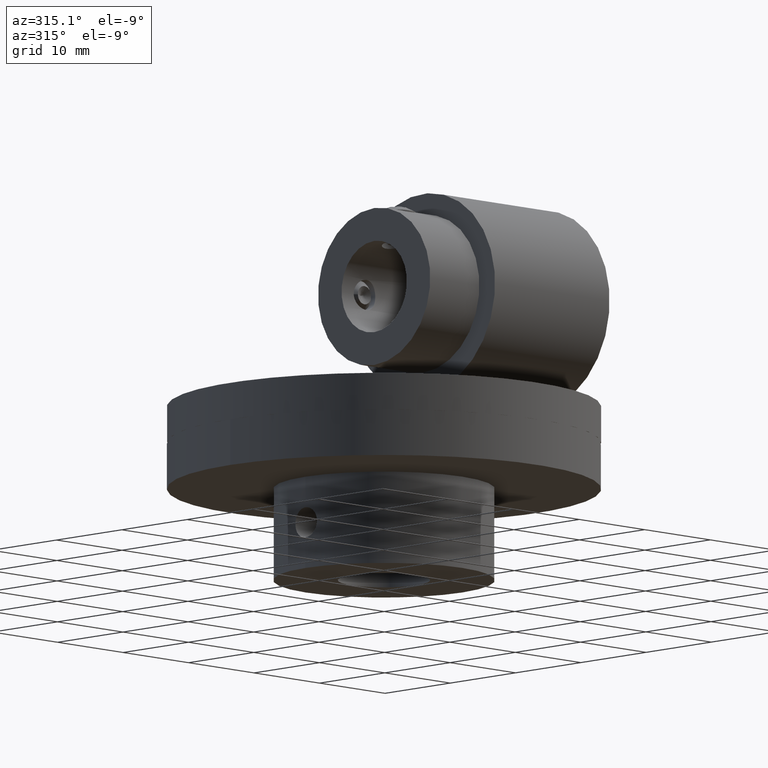
[diagram: clean part render]
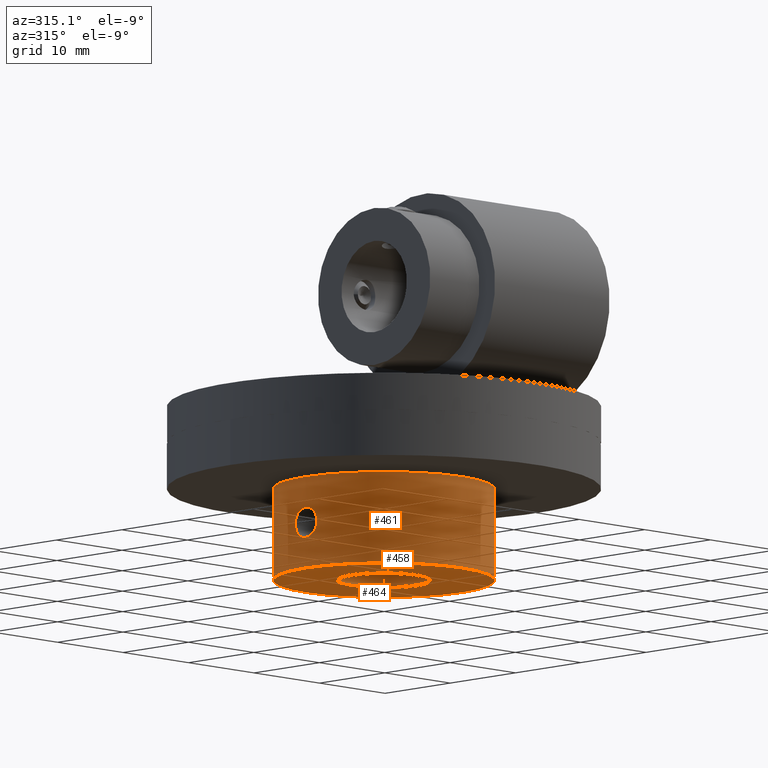
[diagram: same view with one multi-face feature highlighted, each face labeled with its STEP entity id]
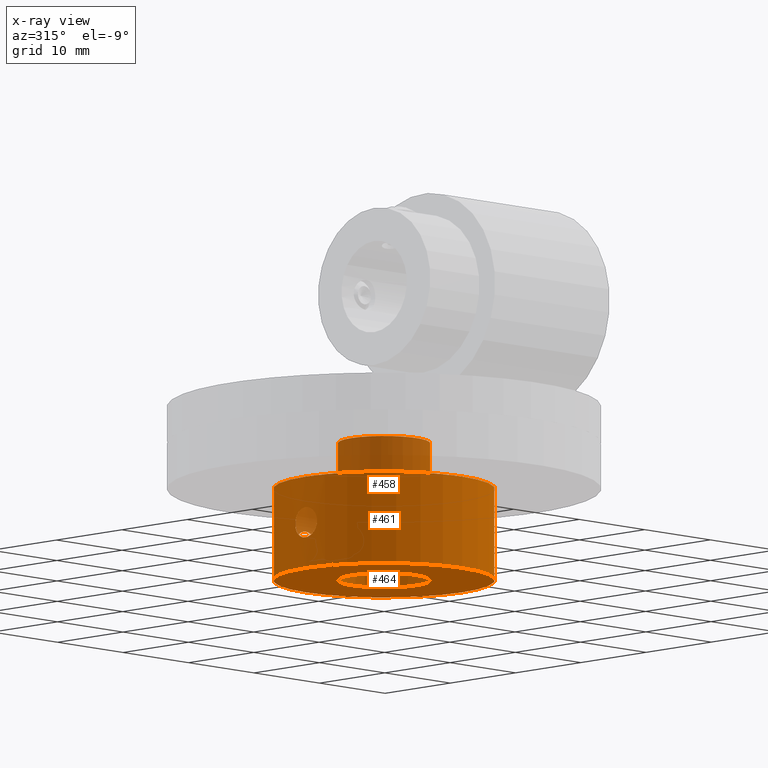
[diagram: x-ray of the same camera — body ghosted, the whole feature saturated]
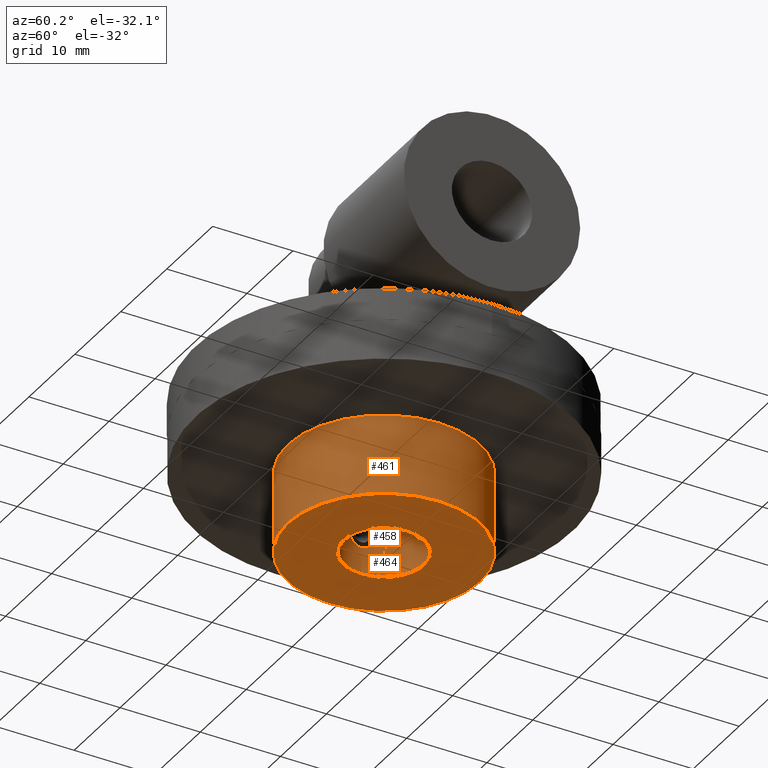
[diagram: same view with one multi-face feature highlighted, each face labeled with its STEP entity id]
A machine part, auxiliary view. The highlighted faces form ONE feature: a stepped (counterbored) hole: 2 coaxial cylindrical walls of radii 5 -> 12 mm joined by 1 annular planar shoulder face(s). The faces share edges in the B-rep.
The next image is the same camera in x-ray: the body ghosted and the whole hole feature saturated, so the bore chain is visible through the body.
A second angle (auxiliary view) of the same feature is appended — it is thin or edge-on in the first view.
Their STEP definitions:
[1] entity #461 (Cylinder):
#461 = ADVANCED_FACE( '', ( #560, #561, #562, #563 ), #564, .T. );
#560 = FACE_BOUND( '', #744, .T. );
#561 = FACE_BOUND( '', #745, .T. );
#562 = FACE_OUTER_BOUND( '', #746, .T. );
#563 = FACE_OUTER_BOUND( '', #747, .T. );
#564 = CYLINDRICAL_SURFACE( '', #748, 12.0000000000000 );
#744 = EDGE_LOOP( '', ( #944 ) );
#745 = EDGE_LOOP( '', ( #945 ) );
#746 = EDGE_LOOP( '', ( #946 ) );
#747 = EDGE_LOOP( '', ( #947 ) );
#748 = AXIS2_PLACEMENT_3D( '', #948, #949, #950 );
#944 = ORIENTED_EDGE( '', *, *, #1345, .T. );
#945 = ORIENTED_EDGE( '', *, *, #1344, .T. );
#946 = ORIENTED_EDGE( '', *, *, #1346, .F. );
#947 = ORIENTED_EDGE( '', *, *, #1347, .T. );
#948 = CARTESIAN_POINT( '', ( 0.000000000000000, 0.000000000000000, 18.0000000000000 ) );
#949 = DIRECTION( '', ( -0.000000000000000, -0.000000000000000, 1.00000000000000 ) );
#950 = DIRECTION( '', ( 1.00000000000000, -1.22460635382238E-016, 0.000000000000000 ) );
#1344 = EDGE_CURVE( '', #1470, #1470, #1471, .T. );
#1345 = EDGE_CURVE( '', #1472, #1472, #1473, .T. );
#1346 = EDGE_CURVE( '', #1474, #1474, #1475, .T. );
#1347 = EDGE_CURVE( '', #1476, #1476, #1477, .T. );
#1470 = VERTEX_POINT( '', #1780 );
#1471 = B_SPLINE_CURVE_WITH_KNOTS( '', 3, ( #1781, #1782, #1783, #1784, #1785, #1786, #1787, #1788, #1789, #1790, #1791, #1792, #1793, #1794, #1795, #1796, #1797, #1798, #1799, #1800, #1801, #1802, #1803, #1804, #1805, #1806, #1807, #1808, #1809, #1810, #1811, #1812, #1813, #1814, #1815, #1816, #1817, #1818, #1819, #1820, #1821, #1822, #1823, #1824, #1825, #1826, #1827, #1828, #1829, #1830, #1831, #1832, #1833, #1834 ), .UNSPECIFIED., .T., .F., ( 2, 2, 2, 2, 2, 2, 2, 2, 2, 2, 2, 2, 2, 2, 2, 2, 2, 2, 2, 2, 2, 2, 2, 2, 2, 2, 2, 2, 2 ), ( -0.000645517434393295, 0.000000000000000, 0.000322758717196647, 0.000645517434393294, 0.000968276151589940, 0.00129103486878659, 0.00193655230317988, 0.00258206973757318, 0.00290482845476983, 0.00322758717196648, 0.00355034588916313, 0.00387310460635977, 0.00419586332355642, 0.00451862204075307, 0.00484138075794972, 0.00516413947514637, 0.00580965690953966, 0.00645517434393295, 0.00677793306112960, 0.00710069177832625, 0.00742345049552289, 0.00774620921271954, 0.00806896792991619, 0.00839172664711284, 0.00871448536430948, 0.00903724408150613, 0.00968276151589943, 0.0103282789502927, 0.0106510376674894 ), .UNSPECIFIED. );
#1472 = VERTEX_POINT( '', #1835 );
#1473 = B_SPLINE_CURVE_WITH_KNOTS( '', 3, ( #1836, #1837, #1838, #1839, #1840, #1841, #1842, #1843, #1844, #1845, #1846, #1847, #1848, #1849, #1850, #1851, #1852, #1853, #1854, #1855, #1856, #1857, #1858, #1859, #1860, #1861, #1862, #1863, #1864, #1865, #1866, #1867, #1868, #1869, #1870, #1871, #1872, #1873, #1874, #1875, #1876, #1877, #1878, #1879, #1880, #1881, #1882, #1883, #1884, #1885, #1886, #1887, #1888, #1889 ), .UNSPECIFIED., .T., .F., ( 2, 2, 2, 2, 2, 2, 2, 2, 2, 2, 2, 2, 2, 2, 2, 2, 2, 2, 2, 2, 2, 2, 2, 2, 2, 2, 2, 2, 2 ), ( -0.000645517434393298, 0.000000000000000, 0.000322758717196646, 0.000645517434393292, 0.000968276151589938, 0.00129103486878658, 0.00193655230317988, 0.00258206973757318, 0.00290482845476982, 0.00322758717196647, 0.00355034588916312, 0.00387310460635977, 0.00419586332355642, 0.00451862204075307, 0.00484138075794971, 0.00516413947514636, 0.00580965690953966, 0.00645517434393295, 0.00677793306112959, 0.00710069177832624, 0.00742345049552289, 0.00774620921271954, 0.00806896792991619, 0.00839172664711284, 0.00871448536430948, 0.00903724408150613, 0.00968276151589943, 0.0103282789502927, 0.0106510376674894 ), .UNSPECIFIED. );
#1474 = VERTEX_POINT( '', #1890 );
#1475 = CIRCLE( '', #1891, 12.0000000000000 );
#1476 = VERTEX_POINT( '', #1892 );
#1477 = CIRCLE( '', #1893, 12.0000000000000 );
#1780 = CARTESIAN_POINT( '', ( -11.8860212013945, -1.65000000000000, 13.0000000000000 ) );
#1781 = CARTESIAN_POINT( '', ( -11.8860212013945, -1.65000000000000, 13.2182909455809 ) );
#1782 = CARTESIAN_POINT( '', ( -11.8860212013945, -1.65000000000000, 12.8908545272096 ) );
#1783 = CARTESIAN_POINT( '', ( -11.8875236816242, -1.63927717737327, 12.7835591133124 ) );
#1784 = CARTESIAN_POINT( '', ( -11.8932384658706, -1.59728761948740, 12.5725089681417 ) );
#1785 = CARTESIAN_POINT( '', ( -11.8975185933998, -1.56550183614249, 12.4676507707824 ) );
#1786 = CARTESIAN_POINT( '', ( -11.9081285026873, -1.48263961998445, 12.2678992842058 ) );
#1787 = CARTESIAN_POINT( '', ( -11.9144091334737, -1.43195195213871, 12.1731801874722 ) );
#1788 = CARTESIAN_POINT( '', ( -11.9281896898064, -1.31222030049528, 11.9939208388052 ) );
#1789 = CARTESIAN_POINT( '', ( -11.9357337081593, -1.24261593443063, 11.9091471662048 ) );
#1790 = CARTESIAN_POINT( '', ( -11.9580091924681, -1.01456897410241, 11.6811494175652 ) );
#1791 = CARTESIAN_POINT( '', ( -11.9728633980229, -0.830690564116475, 11.5582555575889 ) );
#1792 = CARTESIAN_POINT( '', ( -11.9938061539684, -0.433726529113416, 11.3935893587010 ) );
#1793 = CARTESIAN_POINT( '', ( -11.9999833618733, -0.216419265825407, 11.3501210045762 ) );
#1794 = CARTESIAN_POINT( '', ( -12.0000082656418, 0.106822846310654, 11.3499398862325 ) );
#1795 = CARTESIAN_POINT( '', ( -11.9985179870332, 0.216286157114143, 11.3606800619988 ) );
#1796 = CARTESIAN_POINT( '', ( -11.9928324869344, 0.427998279494535, 11.4028252964571 ) );
#1797 = CARTESIAN_POINT( '', ( -11.9886676032476, 0.530913579028390, 11.4340069832954 ) );
#1798 = CARTESIAN_POINT( '', ( -11.9781424301024, 0.730837912081705, 11.5167335697763 ) );
#1799 = CARTESIAN_POINT( '', ( -11.9717848973136, 0.827279767709785, 11.5683408333837 ) );
#1800 = CARTESIAN_POINT( '', ( -11.9580992786540, 1.00592598309263, 11.6876918426080 ) );
#1801 = CARTESIAN_POINT( '', ( -11.9507021265505, 1.08935615744355, 11.7559589799248 ) );
#1802 = CARTESIAN_POINT( '', ( -11.9356725814401, 1.24326110851905, 11.9097538289753 ) );
#1803 = CARTESIAN_POINT( '', ( -11.9282748630874, 1.31144047667497, 11.9929435225917 ) );
#1804 = CARTESIAN_POINT( '', ( -11.9145299846431, 1.43094115122344, 12.1714794545174 ) );
#1805 = CARTESIAN_POINT( '', ( -11.9081234720980, 1.48267952802686, 12.2679854761409 ) );
#1806 = CARTESIAN_POINT( '', ( -11.8975178764097, 1.56550681572276, 12.4676727924517 ) );
#1807 = CARTESIAN_POINT( '', ( -11.8933075619547, 1.59677542217257, 12.5705147228215 ) );
#1808 = CARTESIAN_POINT( '', ( -11.8875460157884, 1.63911751702412, 12.7821855892000 ) );
#1809 = CARTESIAN_POINT( '', ( -11.8860269015807, 1.64995893785510, 12.8916315590287 ) );
#1810 = CARTESIAN_POINT( '', ( -11.8860098506375, 1.65008176687772, 13.2148558238530 ) );
#1811 = CARTESIAN_POINT( '', ( -11.8922225254115, 1.60683191584746, 13.4322044681980 ) );
#1812 = CARTESIAN_POINT( '', ( -11.9132773000074, 1.44245948741022, 13.8294697916721 ) );
#1813 = CARTESIAN_POINT( '', ( -11.9281794237450, 1.31979043731900, 14.0133715847313 ) );
#1814 = CARTESIAN_POINT( '', ( -11.9504675503230, 1.09185764619256, 14.2417383268007 ) );
#1815 = CARTESIAN_POINT( '', ( -11.9580025627957, 1.00709130005012, 14.3114362135105 ) );
#1816 = CARTESIAN_POINT( '', ( -11.9717307859309, 0.828082222765253, 14.4312154488698 ) );
#1817 = CARTESIAN_POINT( '', ( -11.9779835823410, 0.733427551829478, 14.4819879601238 ) );
#1818 = CARTESIAN_POINT( '', ( -11.9885459995397, 0.533639850022685, 14.5650663877939 ) );
#1819 = CARTESIAN_POINT( '', ( -11.9927968445356, 0.428902281040798, 14.5969071991610 ) );
#1820 = CARTESIAN_POINT( '', ( -11.9984845372236, 0.217949835949641, 14.6390752387928 ) );
#1821 = CARTESIAN_POINT( '', ( -11.9999867624098, 0.110532924024146, 14.6499037265805 ) );
#1822 = CARTESIAN_POINT( '', ( -12.0000130632015, -0.107639715239042, 14.6500950051379 ) );
#1823 = CARTESIAN_POINT( '', ( -11.9985398127647, -0.214927912169032, 14.6394775383642 ) );
#1824 = CARTESIAN_POINT( '', ( -11.9928990883483, -0.426055281183309, 14.5976725270236 ) );
#1825 = CARTESIAN_POINT( '', ( -11.9886627381091, -0.531006999943175, 14.5659548473889 ) );
#1826 = CARTESIAN_POINT( '', ( -11.9781466265092, -0.730757193575256, 14.4832993433854 ) );
#1827 = CARTESIAN_POINT( '', ( -11.9719087063240, -0.825529713905367, 14.4326998439042 ) );
#1828 = CARTESIAN_POINT( '', ( -11.9581821302162, -1.00497637866492, 14.3130691640539 ) );
#1829 = CARTESIAN_POINT( '', ( -11.9506579483555, -1.08977667277660, 14.2435577838317 ) );
#1830 = CARTESIAN_POINT( '', ( -11.9283875547002, -1.31792440047027, 14.0157617376487 ) );
#1831 = CARTESIAN_POINT( '', ( -11.9134554949281, -1.44100575406462, 13.8319717128009 ) );
#1832 = CARTESIAN_POINT( '', ( -11.8923337259489, -1.60602551771065, 13.4351511813272 ) );
#1833 = CARTESIAN_POINT( '', ( -11.8860212013945, -1.65000000000000, 13.2182909455809 ) );
#1834 = CARTESIAN_POINT( '', ( -11.8860212013945, -1.65000000000000, 12.8908545272096 ) );
#1835 = CARTESIAN_POINT( '', ( -1.65000000000000, 11.8860212013945, 13.0000000000000 ) );
#1836 = CARTESIAN_POINT( '', ( -1.65000000000000, 11.8860212013945, 13.2182909455809 ) );
#1837 = CARTESIAN_POINT( '', ( -1.65000000000000, 11.8860212013945, 12.8908545272096 ) );
#1838 = CARTESIAN_POINT( '', ( -1.63927717737327, 11.8875236816242, 12.7835591133124 ) );
#1839 = CARTESIAN_POINT( '', ( -1.59728761948740, 11.8932384658706, 12.5725089681417 ) );
#1840 = CARTESIAN_POINT( '', ( -1.56550183614250, 11.8975185933998, 12.4676507707824 ) );
#1841 = CARTESIAN_POINT( '', ( -1.48263961998445, 11.9081285026873, 12.2678992842058 ) );
#1842 = CARTESIAN_POINT( '', ( -1.43195195213871, 11.9144091334737, 12.1731801874722 ) );
#1843 = CARTESIAN_POINT( '', ( -1.31222030049528, 11.9281896898064, 11.9939208388052 ) );
#1844 = CARTESIAN_POINT( '', ( -1.24261593443063, 11.9357337081593, 11.9091471662048 ) );
#1845 = CARTESIAN_POINT( '', ( -1.01456897410241, 11.9580091924681, 11.6811494175652 ) );
#1846 = CARTESIAN_POINT( '', ( -0.830690564116475, 11.9728633980229, 11.5582555575889 ) );
#1847 = CARTESIAN_POINT( '', ( -0.433726529113417, 11.9938061539684, 11.3935893587010 ) );
#1848 = CARTESIAN_POINT( '', ( -0.216419265825407, 11.9999833618733, 11.3501210045763 ) );
#1849 = CARTESIAN_POINT( '', ( 0.106822846310653, 12.0000082656418, 11.3499398862325 ) );
#1850 = CARTESIAN_POINT( '', ( 0.216286157114142, 11.9985179870332, 11.3606800619988 ) );
#1851 = CARTESIAN_POINT( '', ( 0.427998279494535, 11.9928324869344, 11.4028252964571 ) );
#1852 = CARTESIAN_POINT( '', ( 0.530913579028389, 11.9886676032476, 11.4340069832954 ) );
#1853 = CARTESIAN_POINT( '', ( 0.730837912081705, 11.9781424301023, 11.5167335697763 ) );
#1854 = CARTESIAN_POINT( '', ( 0.827279767709785, 11.9717848973136, 11.5683408333837 ) );
#1855 = CARTESIAN_POINT( '', ( 1.00592598309262, 11.9580992786540, 11.6876918426080 ) );
#1856 = CARTESIAN_POINT( '', ( 1.08935615744355, 11.9507021265505, 11.7559589799248 ) );
#1857 = CARTESIAN_POINT( '', ( 1.24326110851905, 11.9356725814401, 11.9097538289753 ) );
#1858 = CARTESIAN_POINT( '', ( 1.31144047667497, 11.9282748630874, 11.9929435225917 ) );
#1859 = CARTESIAN_POINT( '', ( 1.43094115122344, 11.9145299846431, 12.1714794545174 ) );
#1860 = CARTESIAN_POINT( '', ( 1.48267952802685, 11.9081234720980, 12.2679854761409 ) );
#1861 = CARTESIAN_POINT( '', ( 1.56550681572276, 11.8975178764097, 12.4676727924517 ) );
#1862 = CARTESIAN_POINT( '', ( 1.59677542217257, 11.8933075619547, 12.5705147228215 ) );
#1863 = CARTESIAN_POINT( '', ( 1.63911751702412, 11.8875460157884, 12.7821855892000 ) );
#1864 = CARTESIAN_POINT( '', ( 1.64995893785510, 11.8860269015807, 12.8916315590287 ) );
#1865 = CARTESIAN_POINT( '', ( 1.65008176687772, 11.8860098506375, 13.2148558238530 ) );
#1866 = CARTESIAN_POINT( '', ( 1.60683191584746, 11.8922225254115, 13.4322044681980 ) );
#1867 = CARTESIAN_POINT( '', ( 1.44245948741021, 11.9132773000074, 13.8294697916721 ) );
#1868 = CARTESIAN_POINT( '', ( 1.31979043731900, 11.9281794237450, 14.0133715847314 ) );
#1869 = CARTESIAN_POINT( '', ( 1.09185764619256, 11.9504675503230, 14.2417383268007 ) );
#1870 = CARTESIAN_POINT( '', ( 1.00709130005011, 11.9580025627957, 14.3114362135105 ) );
#1871 = CARTESIAN_POINT( '', ( 0.828082222765253, 11.9717307859309, 14.4312154488698 ) );
#1872 = CARTESIAN_POINT( '', ( 0.733427551829478, 11.9779835823410, 14.4819879601238 ) );
#1873 = CARTESIAN_POINT( '', ( 0.533639850022685, 11.9885459995398, 14.5650663877939 ) );
#1874 = CARTESIAN_POINT( '', ( 0.428902281040796, 11.9927968445356, 14.5969071991610 ) );
#1875 = CARTESIAN_POINT( '', ( 0.217949835949640, 11.9984845372236, 14.6390752387928 ) );
#1876 = CARTESIAN_POINT( '', ( 0.110532924024148, 11.9999867624098, 14.6499037265805 ) );
#1877 = CARTESIAN_POINT( '', ( -0.107639715239042, 12.0000130632015, 14.6500950051379 ) );
#1878 = CARTESIAN_POINT( '', ( -0.214927912169032, 11.9985398127647, 14.6394775383642 ) );
#1879 = CARTESIAN_POINT( '', ( -0.426055281183308, 11.9928990883483, 14.5976725270236 ) );
#1880 = CARTESIAN_POINT( '', ( -0.531006999943177, 11.9886627381091, 14.5659548473889 ) );
#1881 = CARTESIAN_POINT( '', ( -0.730757193575258, 11.9781466265092, 14.4832993433854 ) );
#1882 = CARTESIAN_POINT( '', ( -0.825529713905369, 11.9719087063240, 14.4326998439042 ) );
#1883 = CARTESIAN_POINT( '', ( -1.00497637866492, 11.9581821302162, 14.3130691640539 ) );
#1884 = CARTESIAN_POINT( '', ( -1.08977667277661, 11.9506579483555, 14.2435577838317 ) );
#1885 = CARTESIAN_POINT( '', ( -1.31792440047027, 11.9283875547002, 14.0157617376487 ) );
#1886 = CARTESIAN_POINT( '', ( -1.44100575406462, 11.9134554949281, 13.8319717128009 ) );
#1887 = CARTESIAN_POINT( '', ( -1.60602551771065, 11.8923337259489, 13.4351511813272 ) );
#1888 = CARTESIAN_POINT( '', ( -1.65000000000000, 11.8860212013945, 13.2182909455809 ) );
#1889 = CARTESIAN_POINT( '', ( -1.65000000000000, 11.8860212013945, 12.8908545272096 ) );
#1890 = CARTESIAN_POINT( '', ( -12.0000000000000, 1.46952762458685E-015, 18.0000000000000 ) );
#1891 = AXIS2_PLACEMENT_3D( '', #2470, #2471, #2472 );
#1892 = CARTESIAN_POINT( '', ( -12.0000000000000, 1.46952762458685E-015, 8.00000000000000 ) );
#1893 = AXIS2_PLACEMENT_3D( '', #2473, #2474, #2475 );
#2470 = CARTESIAN_POINT( '', ( 0.000000000000000, 0.000000000000000, 18.0000000000000 ) );
#2471 = DIRECTION( '', ( 0.000000000000000, 0.000000000000000, 1.00000000000000 ) );
#2472 = DIRECTION( '', ( -1.00000000000000, 1.22460635382238E-016, 0.000000000000000 ) );
#2473 = CARTESIAN_POINT( '', ( 0.000000000000000, 0.000000000000000, 8.00000000000000 ) );
#2474 = DIRECTION( '', ( 0.000000000000000, 0.000000000000000, 1.00000000000000 ) );
#2475 = DIRECTION( '', ( -1.00000000000000, 1.22460635382238E-016, 0.000000000000000 ) );
[2] entity #458 (Cylinder):
#458 = ADVANCED_FACE( '', ( #549, #550, #551, #552 ), #553, .F. );
#549 = FACE_BOUND( '', #733, .T. );
#550 = FACE_BOUND( '', #734, .T. );
#551 = FACE_OUTER_BOUND( '', #735, .T. );
#552 = FACE_OUTER_BOUND( '', #736, .T. );
#553 = CYLINDRICAL_SURFACE( '', #737, 5.00000000000000 );
#733 = EDGE_LOOP( '', ( #927 ) );
#734 = EDGE_LOOP( '', ( #928 ) );
#735 = EDGE_LOOP( '', ( #929 ) );
#736 = EDGE_LOOP( '', ( #930 ) );
#737 = AXIS2_PLACEMENT_3D( '', #931, #932, #933 );
#927 = ORIENTED_EDGE( '', *, *, #1340, .T. );
#928 = ORIENTED_EDGE( '', *, *, #1341, .T. );
#929 = ORIENTED_EDGE( '', *, *, #1342, .F. );
#930 = ORIENTED_EDGE( '', *, *, #1343, .F. );
#931 = CARTESIAN_POINT( '', ( 0.000000000000000, 0.000000000000000, 7.99999999999455 ) );
#932 = DIRECTION( '', ( -0.000000000000000, -0.000000000000000, -1.00000000000000 ) );
#933 = DIRECTION( '', ( -1.00000000000000, 1.22460635382238E-016, 0.000000000000000 ) );
#1340 = EDGE_CURVE( '', #1462, #1462, #1463, .T. );
#1341 = EDGE_CURVE( '', #1464, #1464, #1465, .T. );
#1342 = EDGE_CURVE( '', #1466, #1466, #1467, .T. );
#1343 = EDGE_CURVE( '', #1468, #1468, #1469, .T. );
#1462 = VERTEX_POINT( '', #1662 );
#1463 = B_SPLINE_CURVE_WITH_KNOTS( '', 3, ( #1663, #1664, #1665, #1666, #1667, #1668, #1669, #1670, #1671, #1672, #1673, #1674, #1675, #1676, #1677, #1678, #1679, #1680, #1681, #1682, #1683, #1684, #1685, #1686, #1687, #1688, #1689, #1690, #1691, #1692, #1693, #1694, #1695, #1696, #1697, #1698, #1699, #1700, #1701, #1702, #1703, #1704, #1705, #1706, #1707, #1708, #1709, #1710, #1711, #1712, #1713, #1714, #1715, #1716, #1717, #1718 ), .UNSPECIFIED., .T., .F., ( 2, 2, 2, 2, 2, 2, 2, 2, 2, 2, 2, 2, 2, 2, 2, 2, 2, 2, 2, 2, 2, 2, 2, 2, 2, 2, 2, 2, 2, 2 ), ( -0.000324657071432375, 0.000000000000000, 0.000324657071432374, 0.000649314142864748, 0.000973971214297122, 0.00129862828572950, 0.00194794242859425, 0.00227259950002662, 0.00259725657145900, 0.00292191364289137, 0.00324657071432375, 0.00389588485718850, 0.00422054192862088, 0.00454519900005326, 0.00486985607148564, 0.00519451314291802, 0.00584382728578278, 0.00616848435721515, 0.00649314142864753, 0.00714245557151229, 0.00746711264294466, 0.00779176971437704, 0.00811642678580941, 0.00844108385724179, 0.00909039800010654, 0.00941505507153892, 0.00973971214297129, 0.0100643692144037, 0.0103890262858360, 0.0107136833572684 ), .UNSPECIFIED. );
#1464 = VERTEX_POINT( '', #1719 );
#1465 = B_SPLINE_CURVE_WITH_KNOTS( '', 3, ( #1720, #1721, #1722, #1723, #1724, #1725, #1726, #1727, #1728, #1729, #1730, #1731, #1732, #1733, #1734, #1735, #1736, #1737, #1738, #1739, #1740, #1741, #1742, #1743, #1744, #1745, #1746, #1747, #1748, #1749, #1750, #1751, #1752, #1753, #1754, #1755, #1756, #1757, #1758, #1759, #1760, #1761, #1762, #1763, #1764, #1765, #1766, #1767, #1768, #1769, #1770, #1771, #1772, #1773, #1774, #1775 ), .UNSPECIFIED., .T., .F., ( 2, 2, 2, 2, 2, 2, 2, 2, 2, 2, 2, 2, 2, 2, 2, 2, 2, 2, 2, 2, 2, 2, 2, 2, 2, 2, 2, 2, 2, 2 ), ( -0.000324657071432375, 0.000000000000000, 0.000324657071432377, 0.000649314142864753, 0.000973971214297130, 0.00129862828572951, 0.00194794242859426, 0.00227259950002663, 0.00259725657145901, 0.00292191364289138, 0.00324657071432376, 0.00389588485718851, 0.00422054192862088, 0.00454519900005326, 0.00486985607148564, 0.00519451314291802, 0.00584382728578277, 0.00616848435721515, 0.00649314142864752, 0.00714245557151228, 0.00746711264294465, 0.00779176971437703, 0.00811642678580941, 0.00844108385724178, 0.00909039800010654, 0.00941505507153891, 0.00973971214297129, 0.0100643692144037, 0.0103890262858360, 0.0107136833572684 ), .UNSPECIFIED. );
#1466 = VERTEX_POINT( '', #1776 );
#1467 = CIRCLE( '', #1777, 5.00000000000000 );
#1468 = VERTEX_POINT( '', #1778 );
#1469 = CIRCLE( '', #1779, 5.00000000000000 );
#1662 = CARTESIAN_POINT( '', ( -1.65000000000000, 4.71990466005406, 13.0000000000000 ) );
#1663 = CARTESIAN_POINT( '', ( -1.65000000000000, 4.71990466005406, 12.8901571559801 ) );
#1664 = CARTESIAN_POINT( '', ( -1.65000000000000, 4.71990466005406, 13.1098428440199 ) );
#1665 = CARTESIAN_POINT( '', ( -1.63914246186063, 4.72373937000455, 13.2176836189788 ) );
#1666 = CARTESIAN_POINT( '', ( -1.59675763418524, 4.73823455557834, 13.4295802904201 ) );
#1667 = CARTESIAN_POINT( '', ( -1.56467085607757, 4.74907422861496, 13.5347604224032 ) );
#1668 = CARTESIAN_POINT( '', ( -1.48161631412131, 4.77563755057719, 13.7341503217713 ) );
#1669 = CARTESIAN_POINT( '', ( -1.43090816834928, 4.79128097869830, 13.8285950324424 ) );
#1670 = CARTESIAN_POINT( '', ( -1.31123387755562, 4.82540540487897, 14.0073398792798 ) );
#1671 = CARTESIAN_POINT( '', ( -1.24215855603374, 4.84386979673163, 14.0913058433776 ) );
#1672 = CARTESIAN_POINT( '', ( -1.01558268518194, 4.89823659632992, 14.3178456275415 ) );
#1673 = CARTESIAN_POINT( '', ( -0.832784277326459, 4.93420991132285, 14.4405230103497 ) );
#1674 = CARTESIAN_POINT( '', ( -0.535369292542456, 4.97225994855381, 14.5644212251117 ) );
#1675 = CARTESIAN_POINT( '', ( -0.430551626182310, 4.98257513540077, 14.5965472431309 ) );
#1676 = CARTESIAN_POINT( '', ( -0.217181257229953, 4.99642492030353, 14.6392590106097 ) );
#1677 = CARTESIAN_POINT( '', ( -0.109589735836816, 4.99997611963850, 14.6499276352540 ) );
#1678 = CARTESIAN_POINT( '', ( 0.107399725579998, 5.00002364055425, 14.6500716380573 ) );
#1679 = CARTESIAN_POINT( '', ( 0.217589103969320, 4.99639571357585, 14.6391686382768 ) );
#1680 = CARTESIAN_POINT( '', ( 0.429888031933365, 4.98262093930551, 14.5966887996341 ) );
#1681 = CARTESIAN_POINT( '', ( 0.533169141922578, 4.97252229153557, 14.5652658533682 ) );
#1682 = CARTESIAN_POINT( '', ( 0.834407577641081, 4.93404023992932, 14.4399896169249 ) );
#1683 = CARTESIAN_POINT( '', ( 1.01523288364966, 4.89833627544837, 14.3183194918676 ) );
#1684 = CARTESIAN_POINT( '', ( 1.24304942340763, 4.84364812407138, 14.0903527656848 ) );
#1685 = CARTESIAN_POINT( '', ( 1.31080292929161, 4.82552083813052, 14.0078671083101 ) );
#1686 = CARTESIAN_POINT( '', ( 1.43023475827666, 4.79148037822223, 13.8297161946534 ) );
#1687 = CARTESIAN_POINT( '', ( 1.48203946150515, 4.77550425874863, 13.7332286888999 ) );
#1688 = CARTESIAN_POINT( '', ( 1.56467612954795, 4.74907048804370, 13.5346530513401 ) );
#1689 = CARTESIAN_POINT( '', ( 1.59622837391478, 4.73841413885257, 13.4317467757338 ) );
#1690 = CARTESIAN_POINT( '', ( 1.63911496821324, 4.72375017268567, 13.2182943449255 ) );
#1691 = CARTESIAN_POINT( '', ( 1.64995491767038, 4.71992042008356, 13.1088744491939 ) );
#1692 = CARTESIAN_POINT( '', ( 1.65008973761372, 4.71987328928304, 12.7843072510499 ) );
#1693 = CARTESIAN_POINT( '', ( 1.60638865883120, 4.73572155914972, 12.5658571198422 ) );
#1694 = CARTESIAN_POINT( '', ( 1.48230748945050, 4.77542147972021, 12.2672786016348 ) );
#1695 = CARTESIAN_POINT( '', ( 1.43053015294484, 4.79139170588078, 12.1707944033825 ) );
#1696 = CARTESIAN_POINT( '', ( 1.31117319942412, 4.82541975778060, 11.9926156239756 ) );
#1697 = CARTESIAN_POINT( '', ( 1.24336472234906, 4.84357094067614, 11.9099745331863 ) );
#1698 = CARTESIAN_POINT( '', ( 1.01487278362588, 4.89842570563578, 11.6812966074994 ) );
#1699 = CARTESIAN_POINT( '', ( 0.834890584362387, 4.93395228801697, 11.5603098988182 ) );
#1700 = CARTESIAN_POINT( '', ( 0.533883631712931, 4.97244408061672, 11.4349821928766 ) );
#1701 = CARTESIAN_POINT( '', ( 0.430753647598112, 4.98254113281938, 11.4035599295584 ) );
#1702 = CARTESIAN_POINT( '', ( 0.218930159966145, 4.99633209767058, 11.3610249579423 ) );
#1703 = CARTESIAN_POINT( '', ( 0.108873703328000, 4.99999698521520, 11.3500091357116 ) );
#1704 = CARTESIAN_POINT( '', ( -0.108596620425361, 5.00000301094606, 11.3499908759210 ) );
#1705 = CARTESIAN_POINT( '', ( -0.216271051430785, 4.99646296184009, 11.3606259779217 ) );
#1706 = CARTESIAN_POINT( '', ( -0.429509801967292, 4.98266360762402, 11.4031776298016 ) );
#1707 = CARTESIAN_POINT( '', ( -0.534588579229949, 4.97234891391611, 11.4352945751318 ) );
#1708 = CARTESIAN_POINT( '', ( -0.832742101426961, 4.93423705101147, 11.5593776847724 ) );
#1709 = CARTESIAN_POINT( '', ( -1.01543475257376, 4.89827371703931, 11.6819936648550 ) );
#1710 = CARTESIAN_POINT( '', ( -1.24230659346456, 4.84383346263862, 11.9088485728879 ) );
#1711 = CARTESIAN_POINT( '', ( -1.31153768902027, 4.82532076286927, 11.9930827665527 ) );
#1712 = CARTESIAN_POINT( '', ( -1.43090097578796, 4.79128103661088, 12.1714254274823 ) );
#1713 = CARTESIAN_POINT( '', ( -1.48155885079314, 4.77565536551578, 12.2657376720085 ) );
#1714 = CARTESIAN_POINT( '', ( -1.56461113709011, 4.74909389128460, 12.4650702996052 ) );
#1715 = CARTESIAN_POINT( '', ( -1.59672804550862, 4.73824458192247, 12.5703033033908 ) );
#1716 = CARTESIAN_POINT( '', ( -1.63913503667331, 4.72374200194944, 12.7822477693786 ) );
#1717 = CARTESIAN_POINT( '', ( -1.65000000000000, 4.71990466005406, 12.8901571559801 ) );
#1718 = CARTESIAN_POINT( '', ( -1.65000000000000, 4.71990466005406, 13.1098428440199 ) );
#1719 = CARTESIAN_POINT( '', ( -4.71990466005406, -1.65000000000000, 13.0000000000000 ) );
#1720 = CARTESIAN_POINT( '', ( -4.71990466005406, -1.65000000000000, 12.8901571559801 ) );
#1721 = CARTESIAN_POINT( '', ( -4.71990466005406, -1.65000000000000, 13.1098428440199 ) );
#1722 = CARTESIAN_POINT( '', ( -4.72373937000455, -1.63914246186063, 13.2176836189788 ) );
#1723 = CARTESIAN_POINT( '', ( -4.73823455557833, -1.59675763418524, 13.4295802904201 ) );
#1724 = CARTESIAN_POINT( '', ( -4.74907422861496, -1.56467085607757, 13.5347604224032 ) );
#1725 = CARTESIAN_POINT( '', ( -4.77563755057719, -1.48161631412131, 13.7341503217713 ) );
#1726 = CARTESIAN_POINT( '', ( -4.79128097869830, -1.43090816834928, 13.8285950324424 ) );
#1727 = CARTESIAN_POINT( '', ( -4.82540540487898, -1.31123387755562, 14.0073398792798 ) );
#1728 = CARTESIAN_POINT( '', ( -4.84386979673163, -1.24215855603374, 14.0913058433776 ) );
#1729 = CARTESIAN_POINT( '', ( -4.89823659632991, -1.01558268518194, 14.3178456275415 ) );
#1730 = CARTESIAN_POINT( '', ( -4.93420991132285, -0.832784277326460, 14.4405230103497 ) );
#1731 = CARTESIAN_POINT( '', ( -4.97225994855381, -0.535369292542456, 14.5644212251117 ) );
#1732 = CARTESIAN_POINT( '', ( -4.98257513540077, -0.430551626182310, 14.5965472431309 ) );
#1733 = CARTESIAN_POINT( '', ( -4.99642492030353, -0.217181257229953, 14.6392590106097 ) );
#1734 = CARTESIAN_POINT( '', ( -4.99997611963850, -0.109589735836816, 14.6499276352540 ) );
#1735 = CARTESIAN_POINT( '', ( -5.00002364055425, 0.107399725579998, 14.6500716380573 ) );
#1736 = CARTESIAN_POINT( '', ( -4.99639571357585, 0.217589103969320, 14.6391686382768 ) );
#1737 = CARTESIAN_POINT( '', ( -4.98262093930551, 0.429888031933364, 14.5966887996341 ) );
#1738 = CARTESIAN_POINT( '', ( -4.97252229153557, 0.533169141922577, 14.5652658533682 ) );
#1739 = CARTESIAN_POINT( '', ( -4.93404023992932, 0.834407577641080, 14.4399896169249 ) );
#1740 = CARTESIAN_POINT( '', ( -4.89833627544837, 1.01523288364966, 14.3183194918676 ) );
#1741 = CARTESIAN_POINT( '', ( -4.84364812407138, 1.24304942340763, 14.0903527656848 ) );
#1742 = CARTESIAN_POINT( '', ( -4.82552083813052, 1.31080292929161, 14.0078671083101 ) );
#1743 = CARTESIAN_POINT( '', ( -4.79148037822223, 1.43023475827665, 13.8297161946534 ) );
#1744 = CARTESIAN_POINT( '', ( -4.77550425874863, 1.48203946150515, 13.7332286888999 ) );
#1745 = CARTESIAN_POINT( '', ( -4.74907048804369, 1.56467612954795, 13.5346530513401 ) );
#1746 = CARTESIAN_POINT( '', ( -4.73841413885257, 1.59622837391478, 13.4317467757338 ) );
#1747 = CARTESIAN_POINT( '', ( -4.72375017268567, 1.63911496821324, 13.2182943449255 ) );
#1748 = CARTESIAN_POINT( '', ( -4.71992042008356, 1.64995491767038, 13.1088744491939 ) );
#1749 = CARTESIAN_POINT( '', ( -4.71987328928304, 1.65008973761372, 12.7843072510499 ) );
#1750 = CARTESIAN_POINT( '', ( -4.73572155914972, 1.60638865883120, 12.5658571198422 ) );
#1751 = CARTESIAN_POINT( '', ( -4.77542147972022, 1.48230748945050, 12.2672786016348 ) );
#1752 = CARTESIAN_POINT( '', ( -4.79139170588077, 1.43053015294484, 12.1707944033825 ) );
#1753 = CARTESIAN_POINT( '', ( -4.82541975778060, 1.31117319942412, 11.9926156239756 ) );
#1754 = CARTESIAN_POINT( '', ( -4.84357094067614, 1.24336472234906, 11.9099745331863 ) );
#1755 = CARTESIAN_POINT( '', ( -4.89842570563578, 1.01487278362588, 11.6812966074994 ) );
#1756 = CARTESIAN_POINT( '', ( -4.93395228801697, 0.834890584362388, 11.5603098988182 ) );
#1757 = CARTESIAN_POINT( '', ( -4.97244408061672, 0.533883631712932, 11.4349821928766 ) );
#1758 = CARTESIAN_POINT( '', ( -4.98254113281938, 0.430753647598112, 11.4035599295584 ) );
#1759 = CARTESIAN_POINT( '', ( -4.99633209767058, 0.218930159966146, 11.3610249579423 ) );
#1760 = CARTESIAN_POINT( '', ( -4.99999698521520, 0.108873703328000, 11.3500091357115 ) );
#1761 = CARTESIAN_POINT( '', ( -5.00000301094606, -0.108596620425360, 11.3499908759210 ) );
#1762 = CARTESIAN_POINT( '', ( -4.99646296184009, -0.216271051430784, 11.3606259779217 ) );
#1763 = CARTESIAN_POINT( '', ( -4.98266360762402, -0.429509801967292, 11.4031776298016 ) );
#1764 = CARTESIAN_POINT( '', ( -4.97234891391611, -0.534588579229947, 11.4352945751318 ) );
#1765 = CARTESIAN_POINT( '', ( -4.93423705101147, -0.832742101426960, 11.5593776847724 ) );
#1766 = CARTESIAN_POINT( '', ( -4.89827371703931, -1.01543475257376, 11.6819936648550 ) );
#1767 = CARTESIAN_POINT( '', ( -4.84383346263862, -1.24230659346456, 11.9088485728879 ) );
#1768 = CARTESIAN_POINT( '', ( -4.82532076286927, -1.31153768902027, 11.9930827665527 ) );
#1769 = CARTESIAN_POINT( '', ( -4.79128103661088, -1.43090097578796, 12.1714254274823 ) );
#1770 = CARTESIAN_POINT( '', ( -4.77565536551578, -1.48155885079314, 12.2657376720085 ) );
#1771 = CARTESIAN_POINT( '', ( -4.74909389128460, -1.56461113709011, 12.4650702996052 ) );
#1772 = CARTESIAN_POINT( '', ( -4.73824458192247, -1.59672804550862, 12.5703033033908 ) );
#1773 = CARTESIAN_POINT( '', ( -4.72374200194945, -1.63913503667331, 12.7822477693786 ) );
#1774 = CARTESIAN_POINT( '', ( -4.71990466005406, -1.65000000000000, 12.8901571559801 ) );
#1775 = CARTESIAN_POINT( '', ( -4.71990466005406, -1.65000000000000, 13.1098428440199 ) );
#1776 = CARTESIAN_POINT( '', ( -5.00000000000000, 6.12303176911189E-016, 23.0000000000000 ) );
#1777 = AXIS2_PLACEMENT_3D( '', #2464, #2465, #2466 );
#1778 = CARTESIAN_POINT( '', ( -5.00000000000000, 6.12303176911189E-016, 7.99999999999455 ) );
#1779 = AXIS2_PLACEMENT_3D( '', #2467, #2468, #2469 );
#2464 = CARTESIAN_POINT( '', ( 0.000000000000000, 0.000000000000000, 23.0000000000000 ) );
#2465 = DIRECTION( '', ( 0.000000000000000, 0.000000000000000, -1.00000000000000 ) );
#2466 = DIRECTION( '', ( -1.00000000000000, 1.22460635382238E-016, 0.000000000000000 ) );
#2467 = CARTESIAN_POINT( '', ( 0.000000000000000, 0.000000000000000, 7.99999999999455 ) );
#2468 = DIRECTION( '', ( 0.000000000000000, 0.000000000000000, 1.00000000000000 ) );
#2469 = DIRECTION( '', ( -1.00000000000000, 1.22460635382238E-016, 0.000000000000000 ) );
[3] entity #464 (Plane):
#464 = ADVANCED_FACE( '', ( #571, #572 ), #573, .F. );
#571 = FACE_BOUND( '', #755, .T. );
#572 = FACE_OUTER_BOUND( '', #756, .T. );
#573 = PLANE( '', #757 );
#755 = EDGE_LOOP( '', ( #961 ) );
#756 = EDGE_LOOP( '', ( #962 ) );
#757 = AXIS2_PLACEMENT_3D( '', #963, #964, #965 );
#961 = ORIENTED_EDGE( '', *, *, #1343, .T. );
#962 = ORIENTED_EDGE( '', *, *, #1347, .F. );
#963 = CARTESIAN_POINT( '', ( 0.000000000000000, 0.000000000000000, 8.00000000000000 ) );
#964 = DIRECTION( '', ( 0.000000000000000, 0.000000000000000, 1.00000000000000 ) );
#965 = DIRECTION( '', ( -1.00000000000000, 1.22460635382238E-016, 0.000000000000000 ) );
#1343 = EDGE_CURVE( '', #1468, #1468, #1469, .T. );
#1347 = EDGE_CURVE( '', #1476, #1476, #1477, .T. );
#1468 = VERTEX_POINT( '', #1778 );
#1469 = CIRCLE( '', #1779, 5.00000000000000 );
#1476 = VERTEX_POINT( '', #1892 );
#1477 = CIRCLE( '', #1893, 12.0000000000000 );
#1778 = CARTESIAN_POINT( '', ( -5.00000000000000, 6.12303176911189E-016, 7.99999999999455 ) );
#1779 = AXIS2_PLACEMENT_3D( '', #2467, #2468, #2469 );
#1892 = CARTESIAN_POINT( '', ( -12.0000000000000, 1.46952762458685E-015, 8.00000000000000 ) );
#1893 = AXIS2_PLACEMENT_3D( '', #2473, #2474, #2475 );
#2467 = CARTESIAN_POINT( '', ( 0.000000000000000, 0.000000000000000, 7.99999999999455 ) );
#2468 = DIRECTION( '', ( 0.000000000000000, 0.000000000000000, 1.00000000000000 ) );
#2469 = DIRECTION( '', ( -1.00000000000000, 1.22460635382238E-016, 0.000000000000000 ) );
#2473 = CARTESIAN_POINT( '', ( 0.000000000000000, 0.000000000000000, 8.00000000000000 ) );
#2474 = DIRECTION( '', ( 0.000000000000000, 0.000000000000000, 1.00000000000000 ) );
#2475 = DIRECTION( '', ( -1.00000000000000, 1.22460635382238E-016, 0.000000000000000 ) );